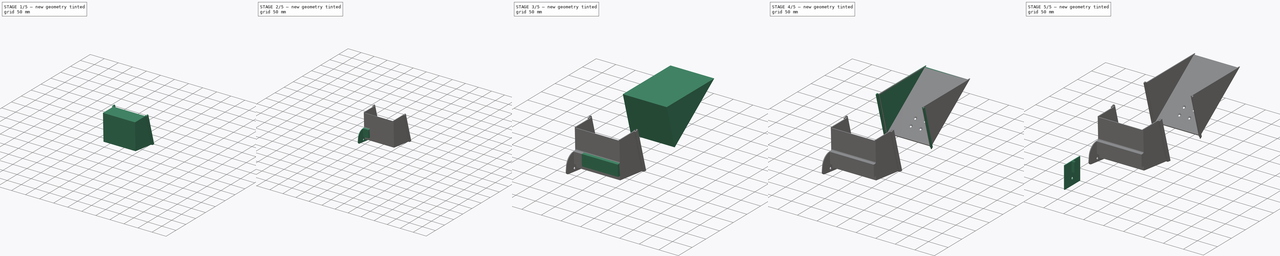
[diagram: build sequence overview — one tinted view per stage of 5, left to right]
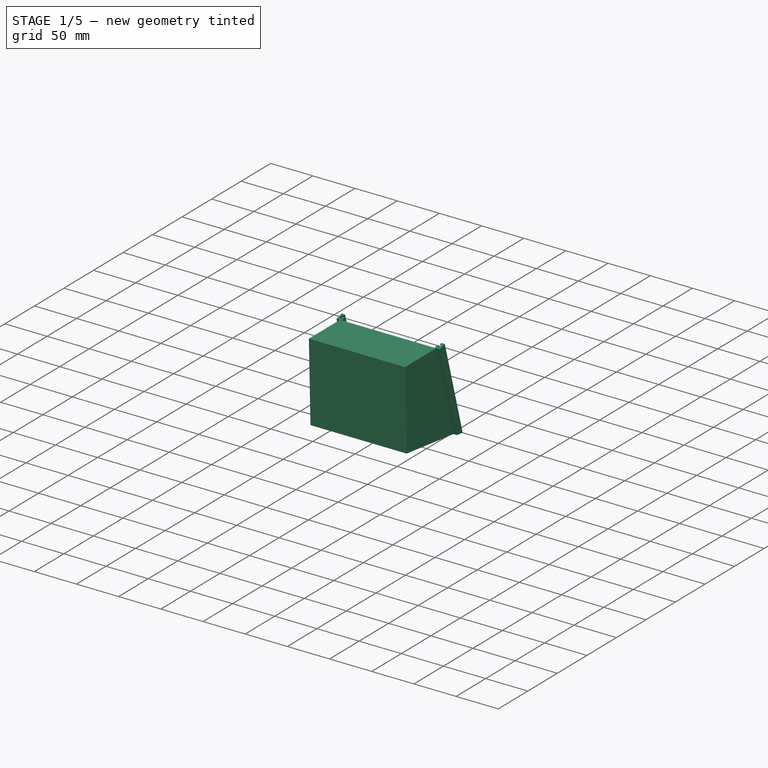
[diagram: stage 1 of 5 — iso view after this stage's code; geometry added in this stage tinted green]
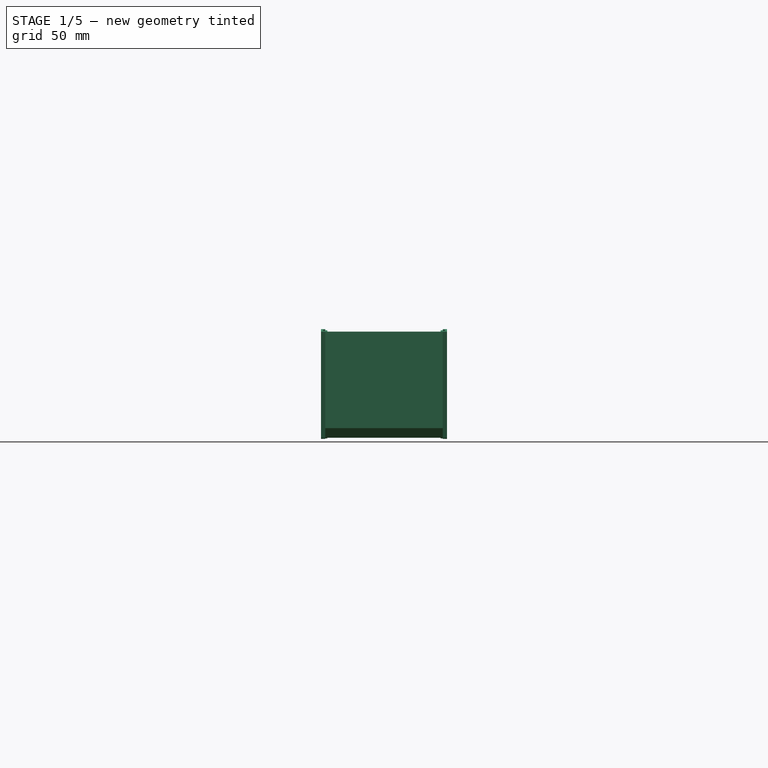
[diagram: stage 1 of 5 — front view after this stage's code; geometry added in this stage tinted green]
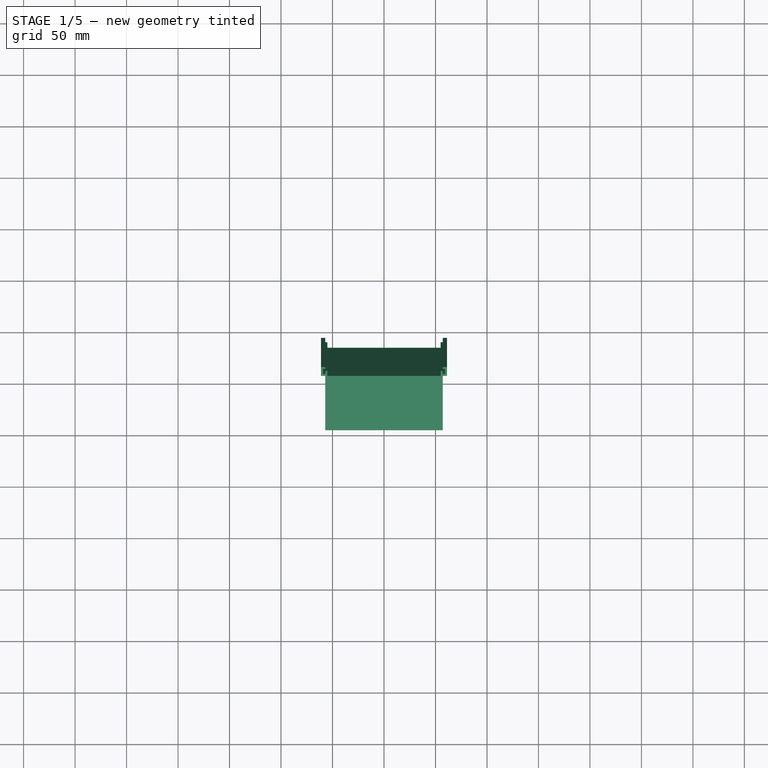
[diagram: stage 1 of 5 — top view after this stage's code; geometry added in this stage tinted green]
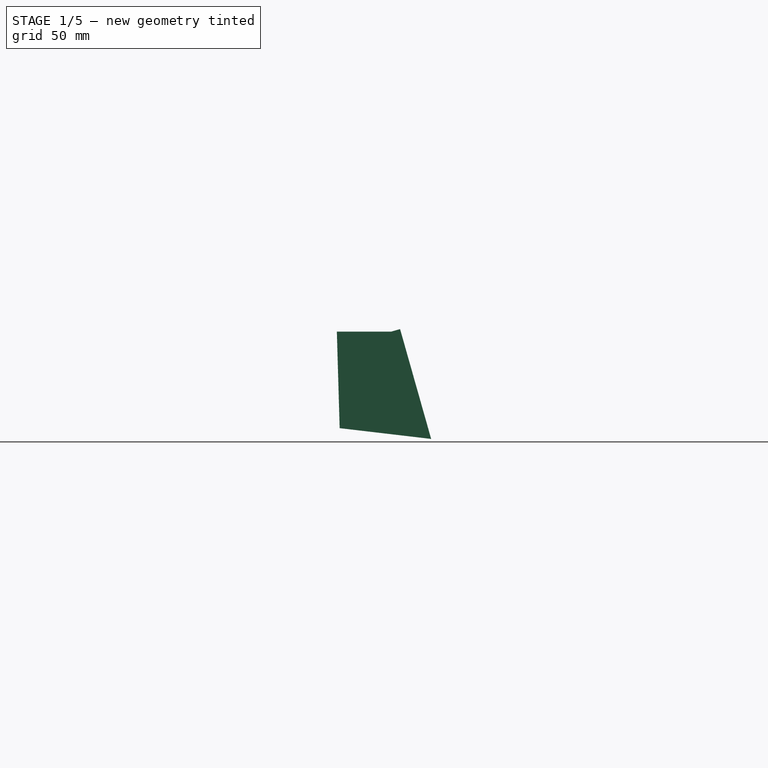
[diagram: stage 1 of 5 — right view after this stage's code; geometry added in this stage tinted green]
FCSTD DOCUMENT  (FreeCAD 0.19R24291 (Git))
Label: bunkerV2
License: All rights reserved
LicenseURL: http://en.wikipedia.org/wiki/All_rights_reserved
objects: Sketcher::SketchObject×14, PartDesign::Pad×13, PartDesign::Pocket×6, PartDesign::Plane×3, PartDesign::Body×3, PartDesign::Mirrored×2, Spreadsheet::Sheet×1, PartDesign::ShapeBinder×1, PartDesign::Hole×1, App::Part×1
note: 63 computed .brp shape members not serialized (recipe doc carries the construction recipe); baked Part::Feature solids carry a one-line shape summary decoded from their .brp

FEATURE [Spreadsheet::Sheet] Spreadsheet  label="D"
  cells = A1=Thickness; B1(thickness)=2; A2=Width; B2(width)=110; A3=Gap; B3(gap)=0.1
FEATURE [Sketcher::SketchObject] Sketch
  FullyConstrained = false
  MapMode = 5
  Placement = pos=(0,0,0) rot=(0.57735,0.57735,0.57735;2.0944rad)
  Support = -> [YZ_Plane]
  expr: Constraints[27] = <<D>>.thickness
  sketch-geometry (12):
    g0: LineSegment StartX=6.18549 StartY=-0.632547 StartZ=0 EndX=3.4533 EndY=93.114 EndZ=0
    g1: LineSegment StartX=3.4533 StartY=93.114 StartZ=0 EndX=56.2043 EndY=93.114 EndZ=0
    g2: LineSegment StartX=56.2043 StartY=93.114 StartZ=0 EndX=85.3612 EndY=-9.93593 EndZ=0
    g3: LineSegment StartX=85.3612 StartY=-9.93593 StartZ=0 EndX=6.18549 EndY=-0.632547 EndZ=0
    g4: LineSegment StartX=5.51244 StartY=91.114 StartZ=0 EndX=54.6917 EndY=91.114 EndZ=0
    g5: LineSegment StartX=54.6917 StartY=91.114 StartZ=0 EndX=82.6219 EndY=-7.60029 EndZ=0
    g6: LineSegment StartX=82.6219 StartY=-7.60029 StartZ=0 EndX=8.13433 EndY=1.15222 EndZ=0
    g7: LineSegment StartX=8.13433 StartY=1.15222 StartZ=0 EndX=5.51244 EndY=91.114 EndZ=0
    g8: LineSegment StartX=11.9382 StartY=91.114 StartZ=0 EndX=11.9382 EndY=93.114 EndZ=0
    g9: LineSegment StartX=57.7151 StartY=80.4284 StartZ=0 EndX=59.6395 EndY=80.9729 EndZ=0
    g10: LineSegment StartX=6.4371 StartY=59.387 StartZ=0 EndX=4.43795 EndY=59.3288 EndZ=0
    g11: LineSegment StartX=27.1691 StartY=-3.09818 StartZ=0 EndX=27.4025 EndY=-1.11185 EndZ=0
  constraints (32):
    c: Coincident(g0,g1)
    c: Coincident(g1,g2)
    c: Coincident(g2,g3)
    c: Coincident(g3,g0)
    c: Coincident(g4,g5)
    c: Coincident(g5,g6)
    c: Coincident(g6,g7)
    c: Coincident(g7,g4)
    c: PointOnObject(g11,g6)
    c: PointOnObject(g11,g3)
    c: PointOnObject(g10,g7)
    c: PointOnObject(g10,g0)
    c: PointOnObject(g9,g5)
    c: PointOnObject(g9,g2)
    c: PointOnObject(g8,g1)
    c: PointOnObject(g8,g4)
    c: Perpendicular(g6,g11)
    c: Perpendicular(g3,g11)
    c: Perpendicular(g0,g10)
    c: Perpendicular(g7,g10)
    c: Perpendicular(g1,g8)
    c: Perpendicular(g4,g8)
    c: Perpendicular(g5,g9)
    c: Perpendicular(g2,g9)
    c: Equal(g8,g9)
    c: Equal(g9,g10)
    c: Equal(g10,g11)
    c: Distance(g11) = 2
    c: Angle(g5,g6) = 1.1781
    c: Distance(g6) = 75
    c: Distance(g7) = 90
    c: Horizontal(g4)
FEATURE [PartDesign::Pad] Pad
  Direction = (1,1,1)
  Length = 55
  Length2 = 55
  Placement = pos=(0,0,0) rot=(0.57735,0.57735,0.57735;2.0944rad)
  Profile = -> Sketch
  Type = 4
  expr: Length2 = <<D>>.width / 2
  expr: Length = <<D>>.width / 2
FEATURE [Sketcher::SketchObject] Sketch001
  ExternalGeometry = -> [Pad]
  FullyConstrained = true
  MapMode = 5
  Placement = pos=(55,-1.21e-14,1.21e-14) rot=(0.57735,0.57735,0.57735;2.0944rad)
  Support = -> [Pad]
  sketch-geometry (4):
    g0: LineSegment StartX=3.4533 StartY=93.114 StartZ=0 EndX=56.2043 EndY=93.114 EndZ=0
    g1: LineSegment StartX=56.2043 StartY=93.114 StartZ=0 EndX=85.3612 EndY=-9.93593 EndZ=0
    g2: LineSegment StartX=85.3612 StartY=-9.93593 StartZ=0 EndX=6.18549 EndY=-0.632547 EndZ=0
    g3: LineSegment StartX=6.18549 StartY=-0.632547 StartZ=0 EndX=3.4533 EndY=93.114 EndZ=0
  constraints (8):
    c: Coincident(g-4,g0)
    c: Coincident(g0,g-5)
    c: Coincident(g0,g1)
    c: Coincident(g1,g-6)
    c: Coincident(g1,g2)
    c: Coincident(g2,g-6)
    c: Coincident(g2,g3)
    c: Coincident(g3,g0)
FEATURE [PartDesign::Pad] Pad001
  BaseFeature = -> Pad
  Direction = (1,1,1)
  Length = 2
  Length2 = 100
  Placement = pos=(0,0,0) rot=(0.57735,0.57735,0.57735;2.0944rad)
  Profile = -> Sketch001
  Type = 0
  expr: Length = <<D>>.thickness
FEATURE [PartDesign::Plane] DatumPlane
  Length = 149.783
  MapMode = 7
  Placement = pos=(57,56.2043,93.114) rot=(1,0,0;0.275732rad)
  ResizeMode = 0
  Support = -> [Pad001]
  Width = 180.53
FEATURE [Sketcher::SketchObject] Sketch002
  ExternalGeometry = -> [Pad001]
  FullyConstrained = true
  MapMode = 5
  Placement = pos=(57,56.2043,93.114) rot=(1,0,0;0.275732rad)
  Support = -> [DatumPlane]
  expr: Constraints[28] = <<D>>.gap
  expr: Constraints[27] = <<D>>.thickness
  expr: Constraints[26] = <<D>>.thickness
  expr: Constraints[24] = <<D>>.thickness + 2 * <<D>>.gap
  expr: Constraints[23] = <<D>>.thickness
  sketch-geometry (11):
    g0: LineSegment StartX=0 StartY=7.1e-15 StartZ=0 EndX=4.2 EndY=0 EndZ=0
    g1: LineSegment StartX=4.2 StartY=0 StartZ=0 EndX=4.2 EndY=9 EndZ=0
    g2: LineSegment StartX=4.2 StartY=9 StartZ=0 EndX=0.1 EndY=9 EndZ=0
    g3: LineSegment StartX=0.1 StartY=9 StartZ=0 EndX=0.1 EndY=7 EndZ=0
    g4: LineSegment StartX=0.1 StartY=7 StartZ=0 EndX=2.2 EndY=7 EndZ=0
    g5: LineSegment StartX=2.2 StartY=7 StartZ=0 EndX=2.2 EndY=2 EndZ=0
    g6: LineSegment StartX=2.2 StartY=2 StartZ=0 EndX=0 EndY=2 EndZ=0
    g7: LineSegment StartX=0 StartY=2 StartZ=0 EndX=0 EndY=5 EndZ=0
    g8: LineSegment StartX=0 StartY=5 StartZ=0 EndX=-2 EndY=5 EndZ=0
    g9: LineSegment StartX=-2 StartY=5 StartZ=0 EndX=-2 EndY=0 EndZ=0
    g10: LineSegment StartX=-2 StartY=0 StartZ=0 EndX=0 EndY=7.1e-15 EndZ=0
  constraints (31):
    c: Coincident(g-1,g0)
    c: PointOnObject(g0,g-1)
    c: Coincident(g0,g1)
    c: Vertical(g1)
    c: Coincident(g1,g2)
    c: Horizontal(g2)
    c: Coincident(g2,g3)
    c: Vertical(g3)
    c: Coincident(g3,g4)
    c: Horizontal(g4)
    c: Coincident(g4,g5)
    c: Vertical(g5)
    c: Coincident(g5,g6)
    c: PointOnObject(g6,g-2)
    c: Horizontal(g6)
    c: Coincident(g6,g7)
    c: PointOnObject(g7,g-2)
    c: Coincident(g7,g8)
    c: Horizontal(g8)
    c: Coincident(g8,g9)
    c: Coincident(g9,g-3)
    c: Vertical(g9)
    c: Equal(g8,g3)
    c: DistanceX(g5,g0) = 2
    c: Distance(g6) = 2.2
    c: Distance(g7) = 3
    c: DistanceY(g0,g5) = 2
    c: DistanceY(g7,g3) = 2
    c: DistanceX(g7,g3) = 0.1
    c: Coincident(g10,g9)
    c: Coincident(g10,g0)
FEATURE [PartDesign::Pad] Pad002
  BaseFeature = -> Pad001
  Direction = (1,1,1)
  Length = 10
  Length2 = 100
  Placement = pos=(0,0,0) rot=(0.57735,0.57735,0.57735;2.0944rad)
  Profile = -> Sketch002
  Type = 3
  UpToFace = -> Pad001 [Face7]
FEATURE [PartDesign::Mirrored] Mirrored
  BaseFeature = -> Pad002
  MirrorPlane = -> YZ_Plane
  Originals = -> [Pad001,Pad002]
  Placement = pos=(0,0,0) rot=(0.57735,0.57735,0.57735;2.0944rad)
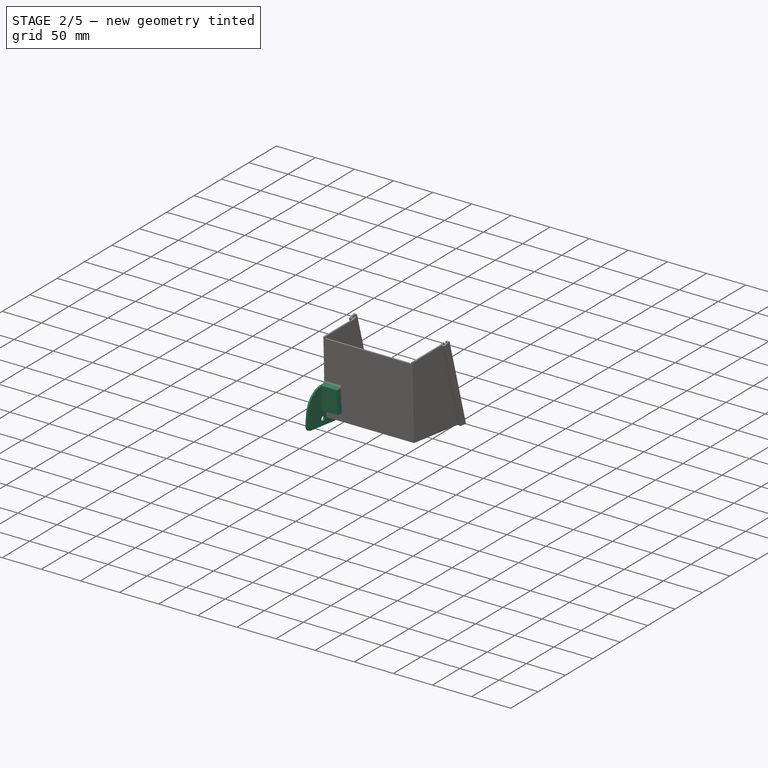
[diagram: stage 2 of 5 — iso view after this stage's code; geometry added in this stage tinted green]
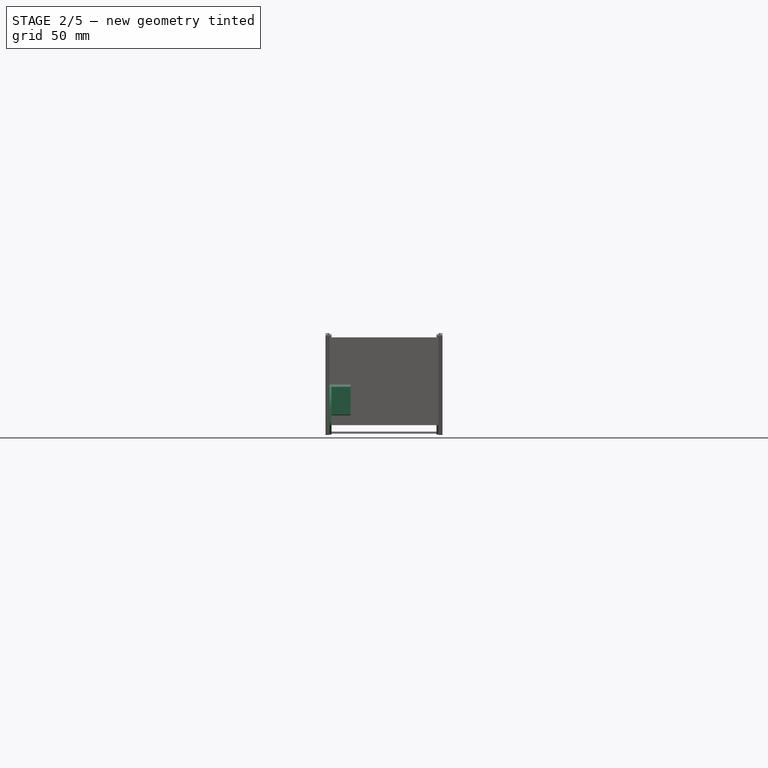
[diagram: stage 2 of 5 — front view after this stage's code; geometry added in this stage tinted green]
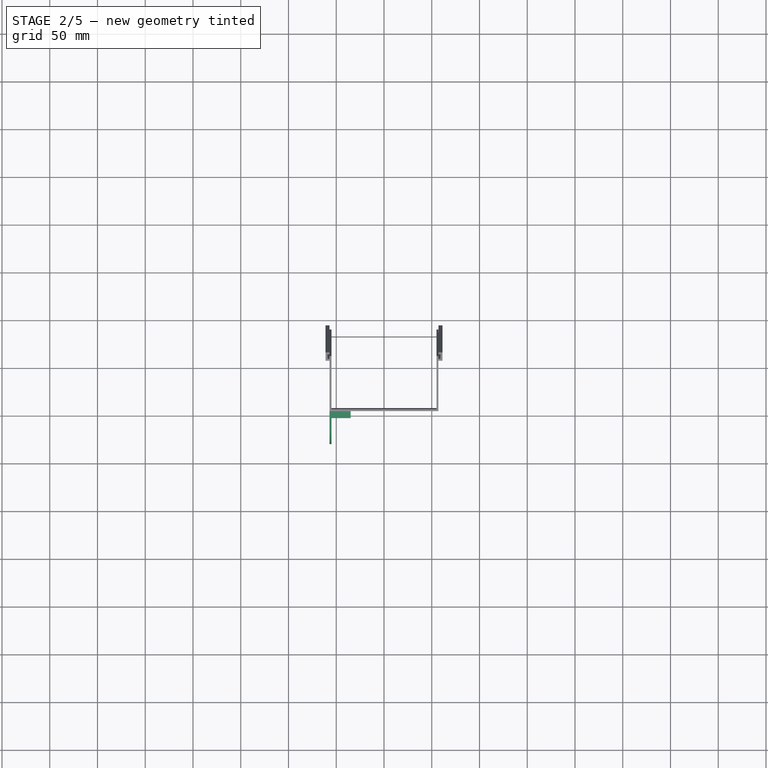
[diagram: stage 2 of 5 — top view after this stage's code; geometry added in this stage tinted green]
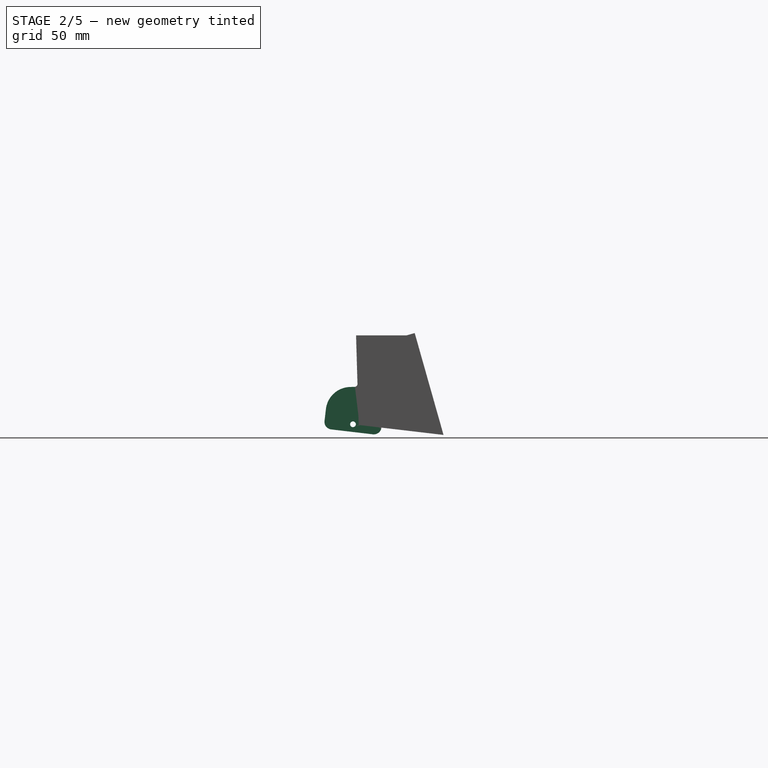
[diagram: stage 2 of 5 — right view after this stage's code; geometry added in this stage tinted green]
FEATURE [Sketcher::SketchObject] Sketch003
  FullyConstrained = false
  MapMode = 5
  Placement = pos=(0,0,0) rot=(0.57735,0.57735,0.57735;2.0944rad)
  Support = -> [YZ_Plane001]
  expr: Constraints[52] = Sketch.Constraints[30]
  expr: Constraints[50] = Sketch.Constraints[28]
  expr: Constraints[49] = Sketch.Constraints[27]
  expr: Constraints[51] = Sketch.Constraints[29]
  expr: Constraints[21] = <<D>>.thickness
  sketch-geometry (21):
    g0: LineSegment StartX=175.7 StartY=103.555 StartZ=0 EndX=205.128 EndY=-0.452097 EndZ=0
    g1: LineSegment StartX=205.128 StartY=-0.452097 StartZ=0 EndX=349.35 EndY=103.555 EndZ=0
    g2: LineSegment StartX=349.35 StartY=103.555 StartZ=0 EndX=175.7 EndY=103.555 EndZ=0
    g3: LineSegment StartX=178.345 StartY=101.555 StartZ=0 EndX=206.275 EndY=2.84078 EndZ=0
    g4: LineSegment StartX=206.275 StartY=2.84078 StartZ=0 EndX=343.157 EndY=101.555 EndZ=0
    g5: LineSegment StartX=343.157 StartY=101.555 StartZ=0 EndX=178.345 EndY=101.555 EndZ=0
    g6: LineSegment StartX=193.58 StartY=101.555 StartZ=0 EndX=193.58 EndY=103.555 EndZ=0
    g7: LineSegment StartX=189.181 StartY=63.2551 StartZ=0 EndX=187.257 EndY=62.7106 EndZ=0
    g8: LineSegment StartX=208.094 StartY=4.15257 StartZ=0 EndX=209.264 EndY=2.53039 EndZ=0
    g9: LineSegment StartX=6.18547 StartY=-0.632548 StartZ=0 EndX=3.4533 EndY=93.114 EndZ=0
    g10: LineSegment StartX=3.4533 StartY=93.114 StartZ=0 EndX=56.2043 EndY=93.114 EndZ=0
    g11: LineSegment StartX=56.2043 StartY=93.114 StartZ=0 EndX=85.3612 EndY=-9.93593 EndZ=0
    g12: LineSegment StartX=85.3612 StartY=-9.93593 StartZ=0 EndX=6.18547 EndY=-0.632548 EndZ=0
    g13: LineSegment StartX=5.51244 StartY=91.114 StartZ=0 EndX=54.6917 EndY=91.114 EndZ=0
    g14: LineSegment StartX=54.6917 StartY=91.114 StartZ=0 EndX=82.6218 EndY=-7.60029 EndZ=0
    g15: LineSegment StartX=82.6218 StartY=-7.60029 StartZ=0 EndX=8.1343 EndY=1.15222 EndZ=0
    g16: LineSegment StartX=8.1343 StartY=1.15222 StartZ=0 EndX=5.51244 EndY=91.114 EndZ=0
    g17: LineSegment StartX=11.9382 StartY=91.114 StartZ=0 EndX=11.9382 EndY=93.114 EndZ=0
    g18: LineSegment StartX=57.7164 StartY=80.4237 StartZ=0 EndX=59.6408 EndY=80.9682 EndZ=0
    g19: LineSegment StartX=6.43771 StartY=59.366 StartZ=0 EndX=4.43856 EndY=59.3078 EndZ=0
    g20: LineSegment StartX=31.8291 StartY=-3.64575 StartZ=0 EndX=32.0625 EndY=-1.65942 EndZ=0
  constraints (60):
    c: Coincident(g0,g1)
    c: Coincident(g1,g2)
    c: Coincident(g2,g0)
    c: Horizontal(g2)
    c: Coincident(g3,g4)
    c: Coincident(g4,g5)
    c: Coincident(g5,g3)
    c: Horizontal(g5)
    c: PointOnObject(g6,g5)
    c: PointOnObject(g6,g2)
    c: Vertical(g6)
    c: PointOnObject(g7,g3)
    c: PointOnObject(g7,g0)
    c: PointOnObject(g8,g4)
    c: PointOnObject(g8,g1)
    c: Perpendicular(g1,g8)
    c: Perpendicular(g4,g8)
    c: Perpendicular(g3,g7)
    c: Perpendicular(g0,g7)
    c: Equal(g8,g7)
    c: Equal(g7,g6)
    c: Distance(g8) = 2
    c: Coincident(g9,g10)
    c: Coincident(g10,g11)
    c: Coincident(g11,g12)
    c: Coincident(g12,g9)
    c: Coincident(g13,g14)
    c: Coincident(g14,g15)
    c: Coincident(g15,g16)
    c: Coincident(g16,g13)
    c: PointOnObject(g20,g15)
    c: PointOnObject(g20,g12)
    c: PointOnObject(g19,g16)
    c: PointOnObject(g19,g9)
    c: PointOnObject(g18,g14)
    c: PointOnObject(g18,g11)
    c: PointOnObject(g17,g10)
    c: PointOnObject(g17,g13)
    c: Perpendicular(g15,g20)
    c: Perpendicular(g12,g20)
    c: Perpendicular(g9,g19)
    c: Perpendicular(g16,g19)
    c: Perpendicular(g10,g17)
    c: Perpendicular(g13,g17)
    c: Perpendicular(g14,g18)
    c: Perpendicular(g11,g18)
    c: Equal(g17,g18)
    c: Equal(g18,g19)
    c: Equal(g19,g20)
    c: Distance(g20) = 2
    c: Angle(g14,g15) = 1.1781
    c: Distance(g15) = 75
    c: Distance(g16) = 90
    c: Horizontal(g13)
    c: DistanceX(g11,g10) = -29.1569
    c: DistanceY(g11,g10) = 103.05
    c: DistanceX(g9) = 3.4533
    c: DistanceY(g9) = 93.114
    c: Parallel(g0,g11)
    c: Equal(g3,g14)
FEATURE [Sketcher::SketchObject] Sketch008
  ExternalGeometry = -> [Mirrored]
  FullyConstrained = true
  MapMode = 5
  Placement = pos=(-57,2.22e-14,-1.1e-15) rot=(-0.57735,-0.57735,0.57735;2.0944rad)
  Support = -> [Mirrored]
  sketch-geometry (7):
    g0: LineSegment StartX=5.89417 StartY=-9.36321 StartZ=0 EndX=5.02021 EndY=-39.3505 EndZ=0
    g1: LineSegment StartX=5.02021 StartY=-39.3505 StartZ=0 EndX=-2.9764 EndY=-39.1174 EndZ=0
    g2: LineSegment StartX=-2.9764 StartY=-39.1174 StartZ=0 EndX=-2.13673 EndY=-10.3069 EndZ=0
    g3: LineSegment StartX=5.89417 StartY=-9.36321 StartZ=0 EndX=-2.13673 EndY=-10.3069 EndZ=0
    g4: ArcOfCircle CenterX=1.93409 CenterY=-42.2618 CenterZ=0 NormalX=0 NormalY=0 NormalZ=1 AngleXU=0 Radius=3 StartAngle=6.25405 EndAngle=7.82484
    g5: LineSegment StartX=-2.9764 StartY=-39.1174 StartZ=0 EndX=2.02151 EndY=-39.2631 EndZ=0
    g6: LineSegment StartX=4.93281 StartY=-42.3492 StartZ=0 EndX=5.02021 EndY=-39.3505 EndZ=0
  constraints (21):
    c: PointOnObject(g0,g-4)
    c: Coincident(g0,g1)
    c: Coincident(g1,g2)
    c: Parallel(g-3,g3)
    c: Distance(g1) = 8
    c: Distance(g0) = 30
    c: Parallel(g0,g2)
    c: Perpendicular(g0,g1)
    c: PointOnObject(g4,g1)
    c: PointOnObject(g4,g-4)
    c: Coincident(g5,g2)
    c: Coincident(g5,g4)
    c: Tangent(g4,g5)
    c: Tangent(g4,g-4)
    c: Radius(g4) = 3
    c: Coincident(g6,g4)
    c: Coincident(g6,g0)
    c: Coincident(g0,g3)
    c: Coincident(g2,g3)
    c: PointOnObject(g0,g-4)
    c: Distance(g0,g-4) = 10
FEATURE [Sketcher::SketchObject] Sketch009
  ExternalGeometry = -> [Mirrored,Sketch008]
  FullyConstrained = false
  MapMode = 5
  Placement = pos=(-57,2.22e-14,-1.1e-15) rot=(-0.57735,-0.57735,0.57735;2.0944rad)
  Support = -> [Mirrored]
  sketch-geometry (10):
    g0: Circle CenterX=-7.03227 CenterY=0.462382 CenterZ=0 NormalX=0 NormalY=0 NormalZ=1 AngleXU=0 Radius=3
    g1: LineSegment StartX=-10.0202 StartY=0.19411 StartZ=0 EndX=-18.5858 EndY=-0.574939 EndZ=0
    g2: LineSegment StartX=-18.5858 StartY=-0.574939 StartZ=0 EndX=-20.4905 EndY=20.6397 EndZ=0
    g3: LineSegment StartX=-18.5858 StartY=-0.574939 StartZ=0 EndX=-20.7856 EndY=23.9265 EndZ=0
    g4: LineSegment StartX=-18.5858 StartY=-0.574939 StartZ=0 EndX=-16.6811 EndY=-21.7896 EndZ=0
    g5: Circle CenterX=-20.6381 CenterY=22.2831 CenterZ=0 NormalX=0 NormalY=0 NormalZ=1 AngleXU=0 Radius=1.65
    g6: Circle CenterX=-16.5335 CenterY=-23.433 CenterZ=0 NormalX=0 NormalY=0 NormalZ=1 AngleXU=0 Radius=1.65
    g7: ArcOfCircle CenterX=-16.5335 CenterY=-23.433 CenterZ=0 NormalX=0 NormalY=0 NormalZ=1 AngleXU=0 Radius=4.26244 StartAngle=3.23114 EndAngle=4.25778
    g8: ArcOfCircle CenterX=-20.6381 CenterY=22.2831 CenterZ=0 NormalX=0 NormalY=0 NormalZ=1 AngleXU=0 Radius=4.26244 StartAngle=1.19385 EndAngle=3.23114
    g9: LineSegment StartX=-20.7789 StartY=-23.8142 StartZ=0 EndX=-24.8834 EndY=21.9019 EndZ=0
  constraints (26):
    c: Radius(g0) = 3
    c: Perpendicular(g0,g1)
    c: PointOnObject(g1,g0)
    c: Coincident(g2,g1)
    c: Coincident(g3,g1)
    c: Coincident(g4,g1)
    c: PointOnObject(g3,g5)
    c: PointOnObject(g2,g5)
    c: PointOnObject(g2,g3)
    c: Perpendicular(g5,g2)
    c: Equal(g2,g4)
    c: Perpendicular(g2,g1)
    c: Parallel(g4,g2)
    c: PointOnObject(g4,g6)
    c: Equal(g6,g5)
    c: Perpendicular(g6,g4)
    c: Distance(g3) = 24.6
    c: Distance(g2) = 21.3
    c: Distance(g1) = 8.6
    c: Coincident(g7,g6)
    c: Coincident(g8,g5)
    c: Coincident(g9,g7)
    c: Coincident(g9,g8)
    c: Equal(g7,g8)
    c: Tangent(g9,g7)
    c: Tangent(g9,g8)
FEATURE [PartDesign::Pad] Pad006
  BaseFeature = -> Mirrored
  Direction = (1,1,1)
  Length = 22
  Length2 = 100
  Placement = pos=(0,0,0) rot=(0.57735,0.57735,0.57735;2.0944rad)
  Profile = -> Sketch008
  Reversed = true
  Type = 0
FEATURE [PartDesign::Body] Body002
  Group = -> [DatumPlane002,CopyPad006,Sketch011,Pad007,Sketch012,Sketch013,Pad008,Sketch016,Pad010,Pad011]
  Origin = -> Origin003
  Tip = -> Pad011
FEATURE [Sketcher::SketchObject] Sketch018
  ExternalGeometry = -> [Pad006]
  FullyConstrained = true
  MapMode = 5
  Placement = pos=(-57,2.22e-14,-1.1e-15) rot=(-0.57735,-0.57735,0.57735;2.0944rad)
  Support = -> [Pad006]
  sketch-geometry (12):
    g0: LineSegment StartX=6.18549 StartY=0.632547 StartZ=0 EndX=0.22649 EndY=-0.067653 EndZ=0
    g1: Circle CenterX=0.22649 CenterY=-0.067653 CenterZ=0 NormalX=0 NormalY=0 NormalZ=1 AngleXU=0 Radius=3
    g2: LineSegment StartX=0.22649 StartY=-0.067653 StartZ=0 EndX=-29.5685 EndY=-3.56865 EndZ=0
    g3: ArcOfCircle CenterX=-21.6232 CenterY=-2.63505 CenterZ=0 NormalX=0 NormalY=0 NormalZ=1 AngleXU=0 Radius=8 StartAngle=1.68776 EndAngle=3.25856
    g4: LineSegment StartX=-22.5568 StartY=5.31028 StartZ=0 EndX=-0.70711 EndY=7.87768 EndZ=0
    g5: LineSegment StartX=0.22649 StartY=-0.067653 StartZ=0 EndX=-0.70711 EndY=7.87768 EndZ=0
    g6: LineSegment StartX=-0.70711 StartY=7.87768 StartZ=0 EndX=21.1426 EndY=10.4451 EndZ=0
    g7: ArcOfCircle CenterX=22.0762 CenterY=2.49975 CenterZ=0 NormalX=0 NormalY=0 NormalZ=1 AngleXU=0 Radius=8 StartAngle=0.116967 EndAngle=1.68776
    g8: GeomPoint X=-0.12361 Y=2.91185 Z=0
    g9: ArcOfCircle CenterX=-2.21736 CenterY=-13.0734 CenterZ=0 NormalX=0 NormalY=0 NormalZ=1 AngleXU=0 Radius=26.0551 StartAngle=3.25856 EndAngle=4.68325
    g10: LineSegment StartX=-29.5685 StartY=-3.56865 StartZ=0 EndX=-28.0944 EndY=-16.114 EndZ=0
    g11: LineSegment StartX=-2.9764 StartY=-39.1174 StartZ=0 EndX=30.0215 EndY=3.43335 EndZ=0
  constraints (34):
    c: Coincident(g0,g-3)
    c: Parallel(g-3,g0)
    c: Distance(g0) = 6
    c: Coincident(g1,g0)
    c: Diameter(g1) = 6
    c: Coincident(g2,g1)
    c: Parallel(g0,g2)
    c: Distance(g2) = 30
    c: PointOnObject(g3,g2)
    c: Coincident(g4,g3)
    c: Tangent(g4,g3)
    c: Parallel(g2,g4)
    c: Coincident(g5,g1)
    c: Coincident(g5,g4)
    c: Perpendicular(g4,g5)
    c: Coincident(g2,g3)
    c: Coincident(g6,g4)
    c: Parallel(g6,g4)
    c: Equal(g6,g4)
    c: PointOnObject(g7,g-3)
    c: Coincident(g7,g6)
    c: PointOnObject(g7,g-3)
    c: Tangent(g7,g6)
    c: PointOnObject(g8,g1)
    c: PointOnObject(g8,g5)
    c: Distance(g8,g4) = 5
    c: Coincident(g10,g3)
    c: Coincident(g10,g9)
    c: Tangent(g9,g10)
    c: Perpendicular(g9,g-4)
    c: Coincident(g9,g-4)
    c: Perpendicular(g2,g10)
    c: Coincident(g11,g9)
    c: Coincident(g11,g7)
FEATURE [PartDesign::Pad] Pad012
  BaseFeature = -> Pad006
  Direction = (1,1,1)
  Length = 2
  Length2 = 100
  Placement = pos=(0,0,0) rot=(0.57735,0.57735,0.57735;2.0944rad)
  Profile = -> Sketch018
  Reversed = true
  Type = 0
FEATURE [PartDesign::Body] Body001
  Group = -> [Sketch003,Pad003,Sketch004,Pad004,DatumPlane001,Sketch005,Pad005,Sketch006,Hole,Mirrored001,Pocket,Pocket001]
  Origin = -> Origin001
  Tip = -> Pocket001
FEATURE [PartDesign::Pocket] Pocket002
  BaseFeature = -> Pad012
  Length = 2
  Length2 = 100
  Placement = pos=(0,0,0) rot=(0.57735,0.57735,0.57735;2.0944rad)
  Profile = -> Pad012 [Face7]
  Type = 0
FEATURE [PartDesign::Pocket] Pocket003
  BaseFeature = -> Pocket002
  Length = 2
  Length2 = 100
  Placement = pos=(0,0,0) rot=(0.57735,0.57735,0.57735;2.0944rad)
  Profile = -> Pocket002 [Face28]
  Type = 0
FEATURE [PartDesign::Pocket] Pocket004
  BaseFeature = -> Pocket003
  Length = 2
  Length2 = 100
  Placement = pos=(0,0,0) rot=(0.57735,0.57735,0.57735;2.0944rad)
  Profile = -> Pocket003 [Face37]
  Type = 0
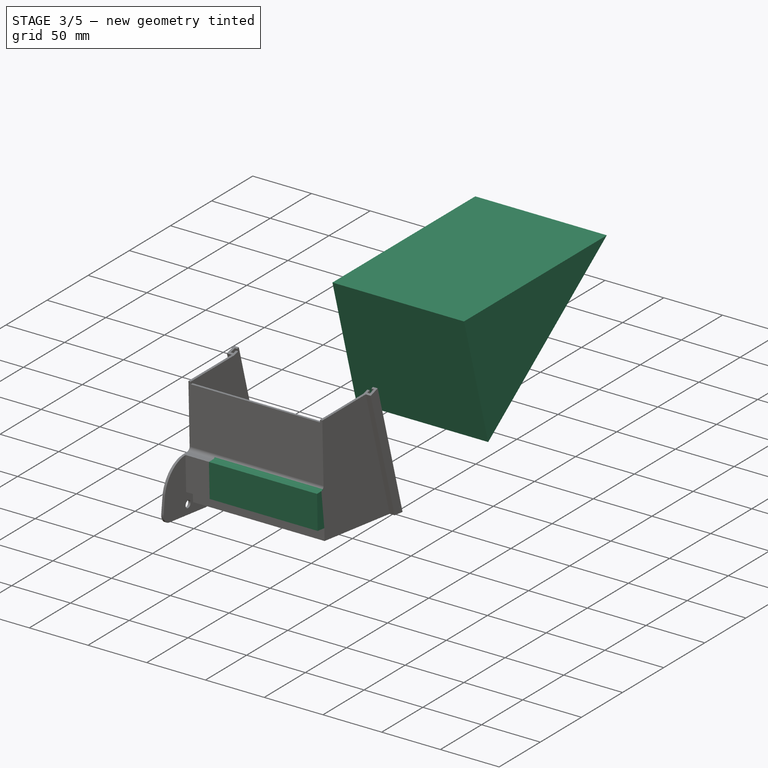
[diagram: stage 3 of 5 — iso view after this stage's code; geometry added in this stage tinted green]
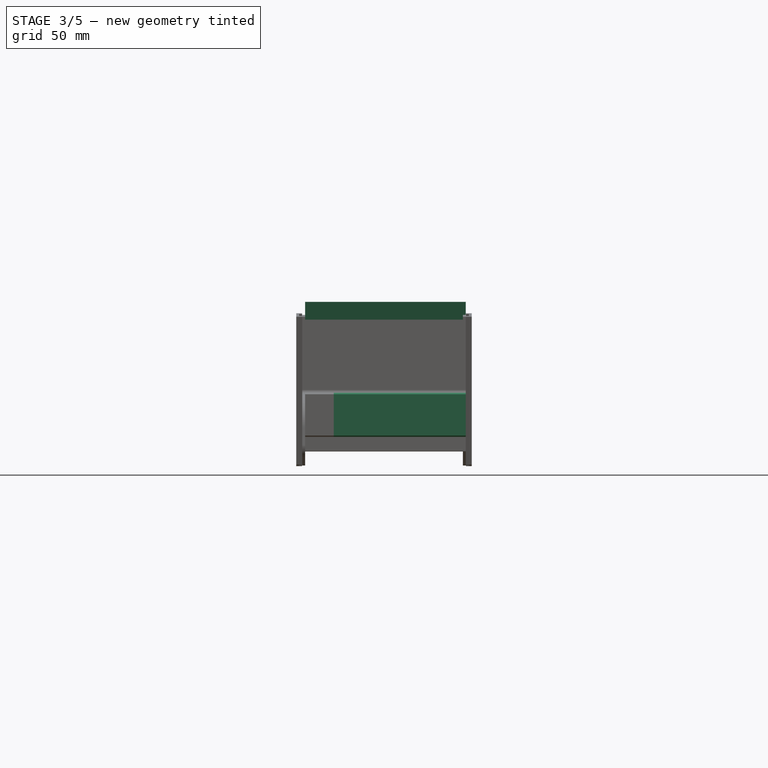
[diagram: stage 3 of 5 — front view after this stage's code; geometry added in this stage tinted green]
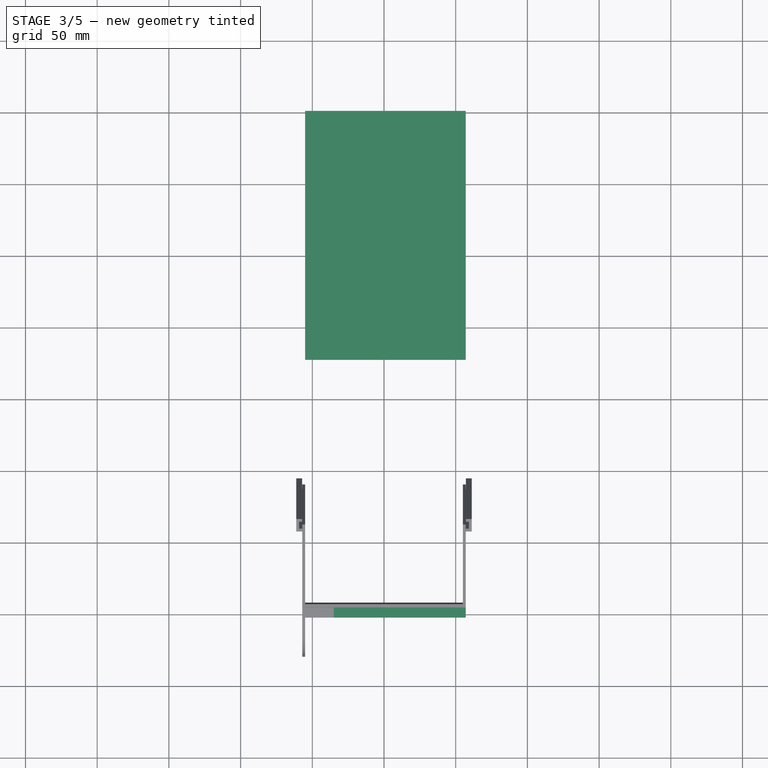
[diagram: stage 3 of 5 — top view after this stage's code; geometry added in this stage tinted green]
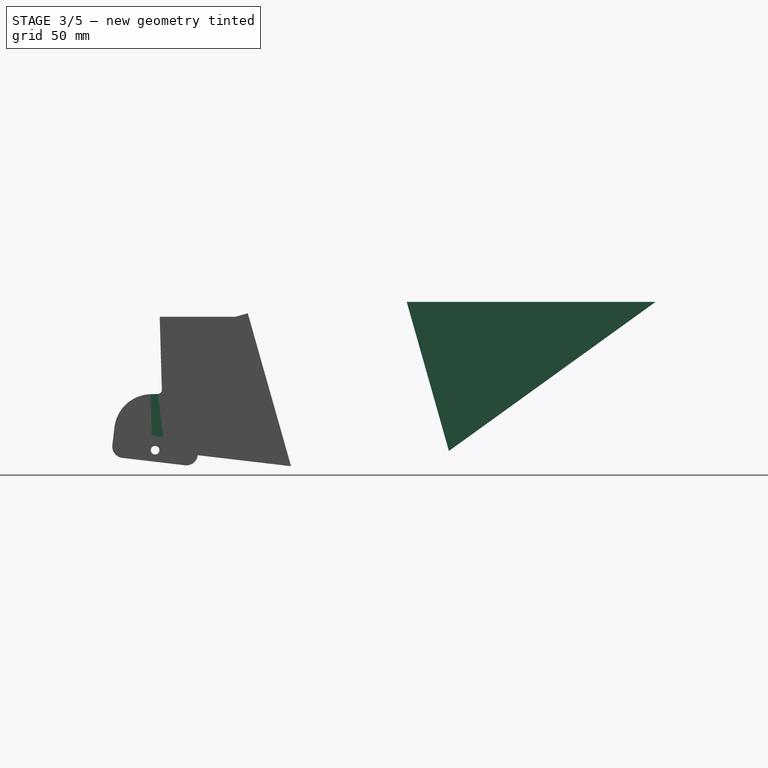
[diagram: stage 3 of 5 — right view after this stage's code; geometry added in this stage tinted green]
FEATURE [PartDesign::Pad] Pad003
  Direction = (1,1,1)
  Length = 55
  Length2 = 55
  Placement = pos=(0,0,0) rot=(0.57735,0.57735,0.57735;2.0944rad)
  Profile = -> Sketch003
  Type = 4
  expr: Length2 = <<D>>.width / 2
  expr: Length = <<D>>.width / 2
FEATURE [Sketcher::SketchObject] Sketch004
  ExternalGeometry = -> [Pad003]
  FullyConstrained = true
  MapMode = 5
  Placement = pos=(55,-1.21e-14,1.21e-14) rot=(0.57735,0.57735,0.57735;2.0944rad)
  Support = -> [Pad003]
  sketch-geometry (3):
    g0: LineSegment StartX=349.35 StartY=103.555 StartZ=0 EndX=205.128 EndY=-0.452097 EndZ=0
    g1: LineSegment StartX=205.128 StartY=-0.452097 StartZ=0 EndX=175.7 EndY=103.555 EndZ=0
    g2: LineSegment StartX=175.7 StartY=103.555 StartZ=0 EndX=349.35 EndY=103.555 EndZ=0
  constraints (6):
    c: Coincident(g-5,g0)
    c: Coincident(g0,g-5)
    c: Coincident(g0,g1)
    c: Coincident(g1,g-4)
    c: Coincident(g1,g2)
    c: Coincident(g2,g0)
FEATURE [PartDesign::Pad] Pad004
  BaseFeature = -> Pad003
  Direction = (1,1,1)
  Length = 2
  Length2 = 100
  Placement = pos=(0,0,0) rot=(0.57735,0.57735,0.57735;2.0944rad)
  Profile = -> Sketch004
  Type = 0
  expr: Length = <<D>>.thickness
FEATURE [PartDesign::Pad] Pad013
  BaseFeature = -> Pocket004
  Direction = (1,1,1)
  Length = 92
  Length2 = 100
  Placement = pos=(0,0,0) rot=(0.57735,0.57735,0.57735;2.0944rad)
  Profile = -> Pocket004 [Face4]
  Type = 0
FEATURE [PartDesign::Pocket] Pocket005
  BaseFeature = -> Pad013
  Length = 5
  Length2 = 100
  Placement = pos=(0,0,0) rot=(0.57735,0.57735,0.57735;2.0944rad)
  Profile = -> Pad013 [Face24]
  Type = 0
FEATURE [PartDesign::Body] Body
  Group = -> [Sketch,Pad,Sketch001,Pad001,DatumPlane,Sketch002,Pad002,Mirrored,Sketch008,Sketch009,Pad006,Sketch018,Pad012,Pocket002,Pocket003,Pocket004,Pad013,Pocket005]
  Origin = -> Origin
  Tip = -> Pocket005
FEATURE [App::Part] Part
  Group = -> [Body,Body001,Spreadsheet,Body002]
  Origin = -> Origin002
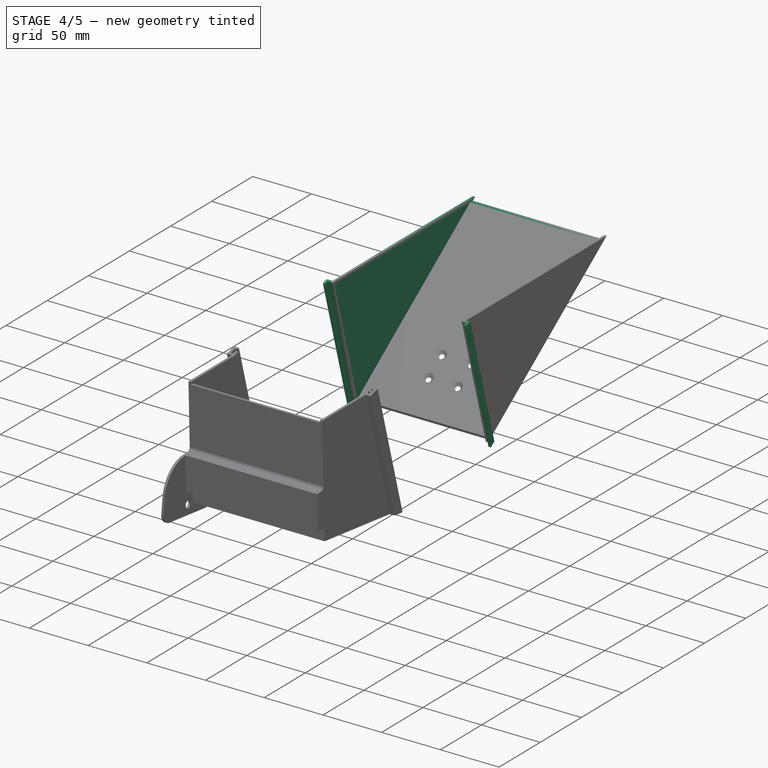
[diagram: stage 4 of 5 — iso view after this stage's code; geometry added in this stage tinted green]
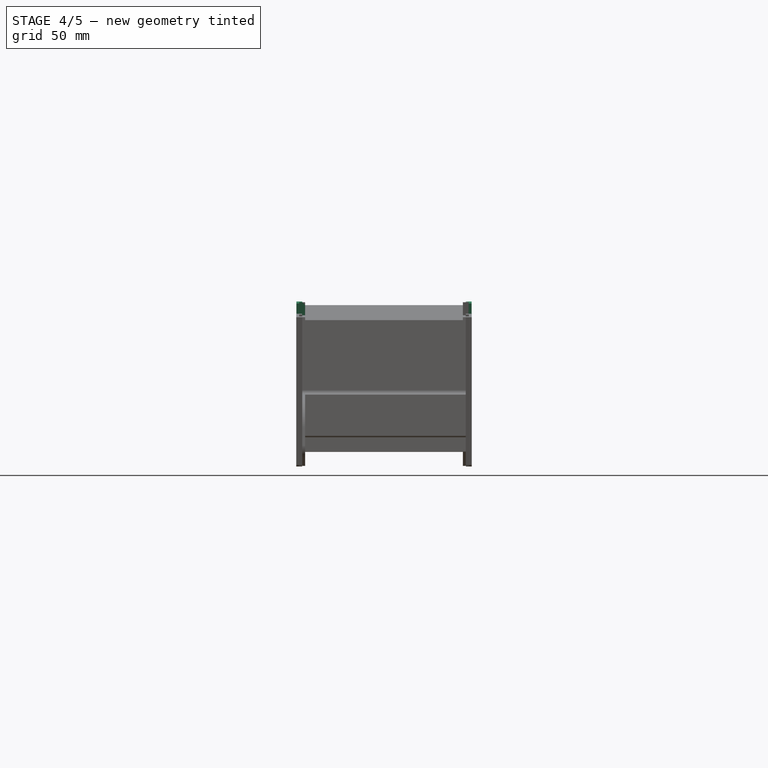
[diagram: stage 4 of 5 — front view after this stage's code; geometry added in this stage tinted green]
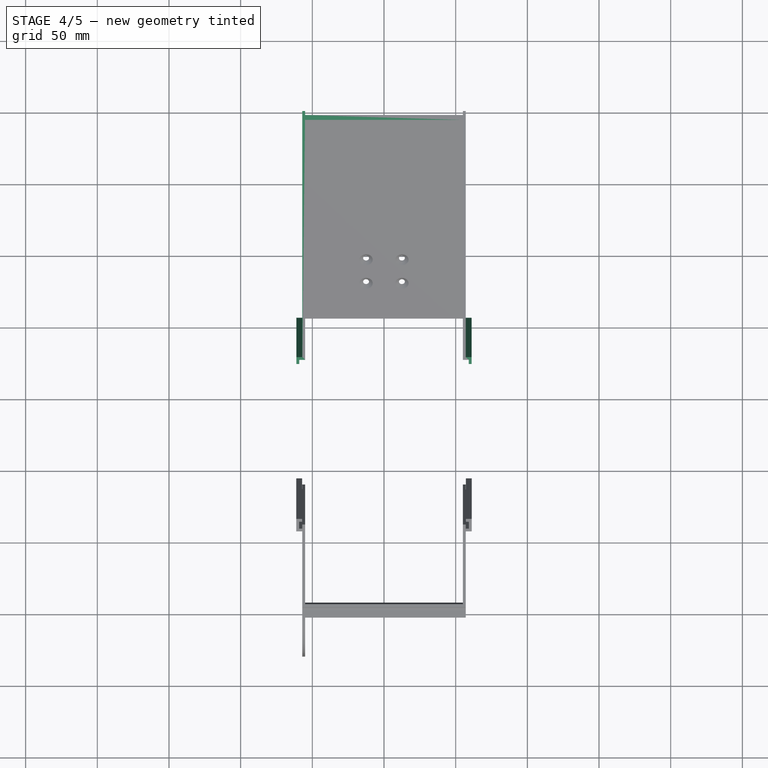
[diagram: stage 4 of 5 — top view after this stage's code; geometry added in this stage tinted green]
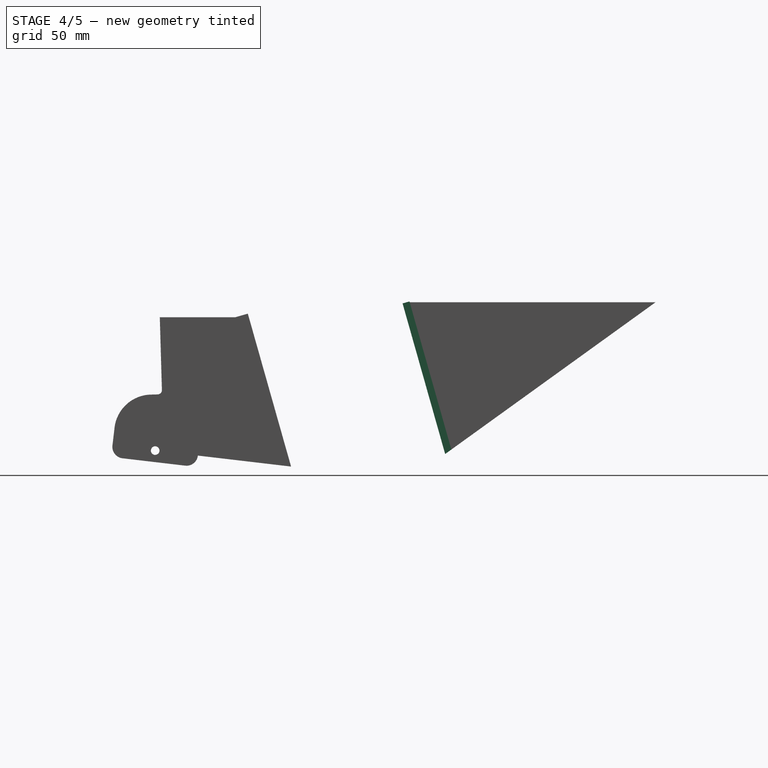
[diagram: stage 4 of 5 — right view after this stage's code; geometry added in this stage tinted green]
FEATURE [PartDesign::Plane] DatumPlane001
  Length = 166.16
  MapMode = 7
  Placement = pos=(57,175.7,103.555) rot=(0,0.990511,0.13743;3.14159rad)
  ResizeMode = 0
  Support = -> [Pad004]
  Width = 439.317
FEATURE [Sketcher::SketchObject] Sketch005
  FullyConstrained = true
  MapMode = 5
  Placement = pos=(57,175.7,103.555) rot=(0,0.990511,0.13743;3.14159rad)
  Support = -> [DatumPlane001]
  expr: Constraints[15] = <<D>>.thickness + <<D>>.gap
  expr: Constraints[14] = <<D>>.thickness
  expr: Constraints[13] = <<D>>.thickness
  sketch-geometry (6):
    g0: LineSegment StartX=0 StartY=0 StartZ=0 EndX=-2.1 EndY=0 EndZ=0
    g1: LineSegment StartX=-2.1 StartY=0 StartZ=0 EndX=-2.1 EndY=-3 EndZ=0
    g2: LineSegment StartX=-2.1 StartY=-3 StartZ=0 EndX=-4.1 EndY=-3 EndZ=0
    g3: LineSegment StartX=-4.1 StartY=-3 StartZ=0 EndX=-4.1 EndY=2 EndZ=0
    g4: LineSegment StartX=-4.1 StartY=2 StartZ=0 EndX=0 EndY=2 EndZ=0
    g5: LineSegment StartX=0 StartY=2 StartZ=0 EndX=0 EndY=0 EndZ=0
  constraints (17):
    c: Coincident(g-1,g0)
    c: PointOnObject(g0,g-1)
    c: Coincident(g0,g1)
    c: Vertical(g1)
    c: Coincident(g1,g2)
    c: Horizontal(g2)
    c: Coincident(g2,g3)
    c: Vertical(g3)
    c: Coincident(g3,g4)
    c: PointOnObject(g4,g-2)
    c: Horizontal(g4)
    c: Coincident(g4,g5)
    c: Coincident(g5,g0)
    c: Distance(g2) = 2
    c: Distance(g5) = 2
    c: Distance(g0) = 2.1
    c: Distance(g1) = 3
FEATURE [PartDesign::Pad] Pad005
  BaseFeature = -> Pad004
  Direction = (1,1,1)
  Length = 10
  Length2 = 100
  Placement = pos=(0,0,0) rot=(0.57735,0.57735,0.57735;2.0944rad)
  Profile = -> Sketch005
  Type = 3
  UpToFace = -> Pad004 [Face7]
FEATURE [Sketcher::SketchObject] Sketch006
  ExternalGeometry = -> [Pad005]
  FullyConstrained = true
  MapMode = 5
  Placement = pos=(5.68e-14,69.2267,-95.9932) rot=(0.293776,0.293776,-0.90961;1.66539rad)
  Support = -> [Pad005]
  expr: Constraints[11] = <<D>>.width / 2
  sketch-geometry (5):
    g0: Circle CenterX=-198.969 CenterY=-12.5 CenterZ=0 NormalX=0 NormalY=0 NormalZ=1 AngleXU=0 Radius=4.12
    g1: Circle CenterX=-198.969 CenterY=12.5 CenterZ=0 NormalX=0 NormalY=0 NormalZ=1 AngleXU=0 Radius=4.12
    g2: Circle CenterX=-218.969 CenterY=12.5 CenterZ=0 NormalX=0 NormalY=0 NormalZ=1 AngleXU=0 Radius=4.12
    g3: Circle CenterX=-218.969 CenterY=-12.5 CenterZ=0 NormalX=0 NormalY=0 NormalZ=1 AngleXU=0 Radius=4.12
    g4: GeomPoint X=-168.969 Y=9.86e-14 Z=0
  constraints (14):
    c: Vertical(g3,g2)
    c: Vertical(g0,g1)
    c: Horizontal(g0,g3)
    c: Horizontal(g1,g2)
    c: Equal(g3,g2)
    c: Equal(g2,g1)
    c: Equal(g1,g0)
    c: Diameter(g1) = 8.24
    c: DistanceX(g0,g-4) = 30
    c: DistanceX(g3,g-4) = 50
    c: PointOnObject(g4,g-4)
    c: Distance(g4,g-4) = 55
    c: DistanceY(g4,g1) = 12.5
    c: DistanceY(g0,g1) = 25
FEATURE [PartDesign::Hole] Hole
  BaseFeature = -> Pad005
  Depth = 25
  DepthType = 0
  Diameter = 3.8
  DrillForDepth = false
  DrillPoint = 1
  DrillPointAngle = 89
  HoleCutCountersinkAngle = 105
  HoleCutCustomValues = false
  HoleCutDepth = 5.4
  HoleCutDiameter = 9.28
  HoleCutType = 2
  ModelActualThread = false
  Placement = pos=(0,0,0) rot=(0.57735,0.57735,0.57735;2.0944rad)
  Profile = -> Sketch006
  Tapered = false
  TaperedAngle = 90
  ThreadAngle = 0
  ThreadClass = 0
  ThreadCutOffInner = 0
  ThreadCutOffOuter = 0
  ThreadDirection = 0
  ThreadFit = 0
  ThreadPitch = 0
  ThreadSize = 0
  ThreadType = 0
  Threaded = false
FEATURE [PartDesign::Mirrored] Mirrored001
  BaseFeature = -> Hole
  MirrorPlane = -> YZ_Plane001
  Originals = -> [Pad004,Pad005]
  Placement = pos=(0,0,0) rot=(0.57735,0.57735,0.57735;2.0944rad)
FEATURE [PartDesign::Pocket] Pocket
  BaseFeature = -> Mirrored001
  Length = 2
  Length2 = 100
  Placement = pos=(0,0,0) rot=(0.57735,0.57735,0.57735;2.0944rad)
  Profile = -> Mirrored001 [Face2]
  Type = 0
FEATURE [PartDesign::Pocket] Pocket001
  BaseFeature = -> Pocket
  Length = 2
  Length2 = 100
  Placement = pos=(0,0,0) rot=(0.57735,0.57735,0.57735;2.0944rad)
  Profile = -> Pocket [Face5]
  Type = 0
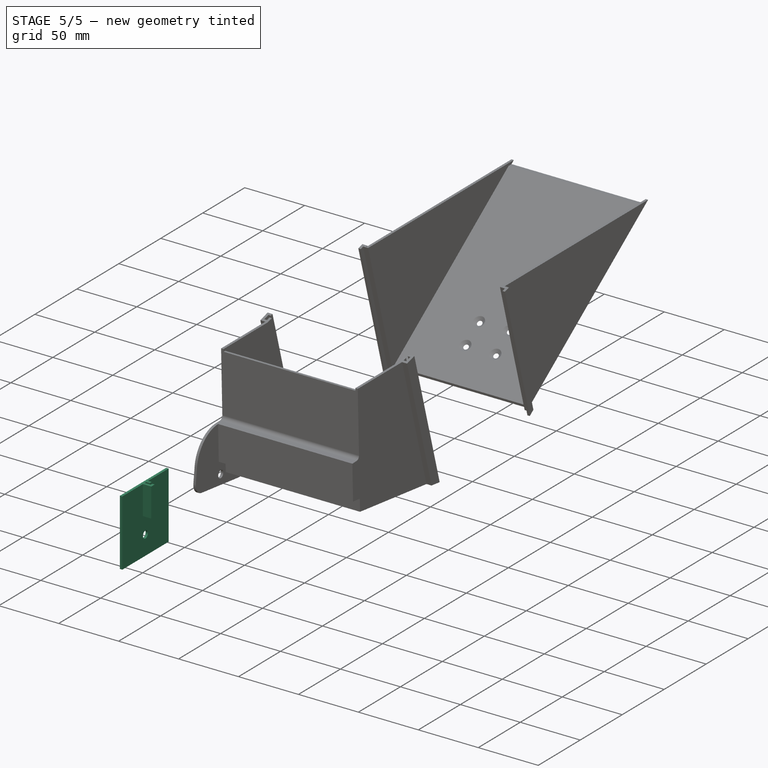
[diagram: stage 5 of 5 — iso view after this stage's code; geometry added in this stage tinted green]
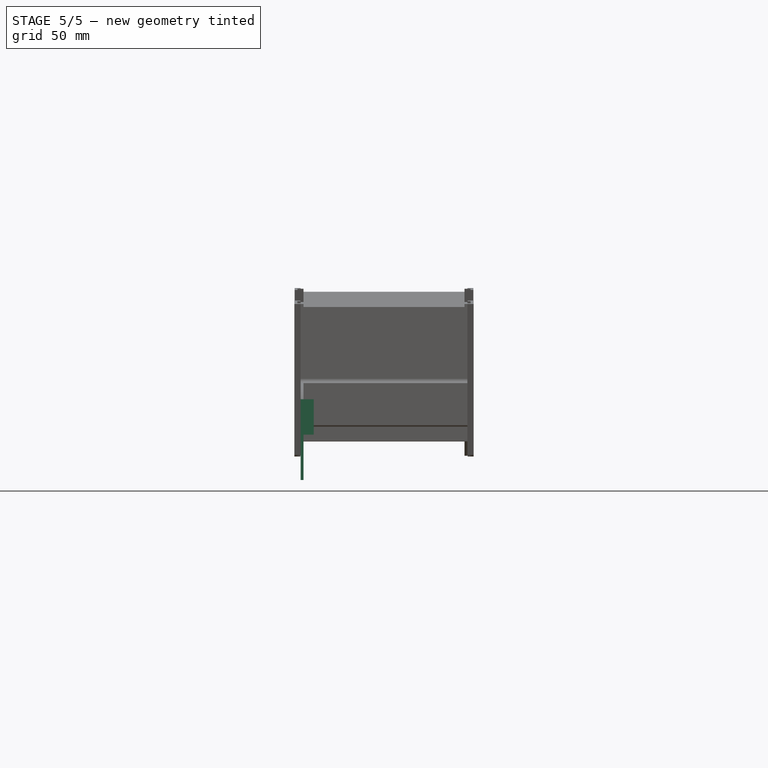
[diagram: stage 5 of 5 — front view after this stage's code; geometry added in this stage tinted green]
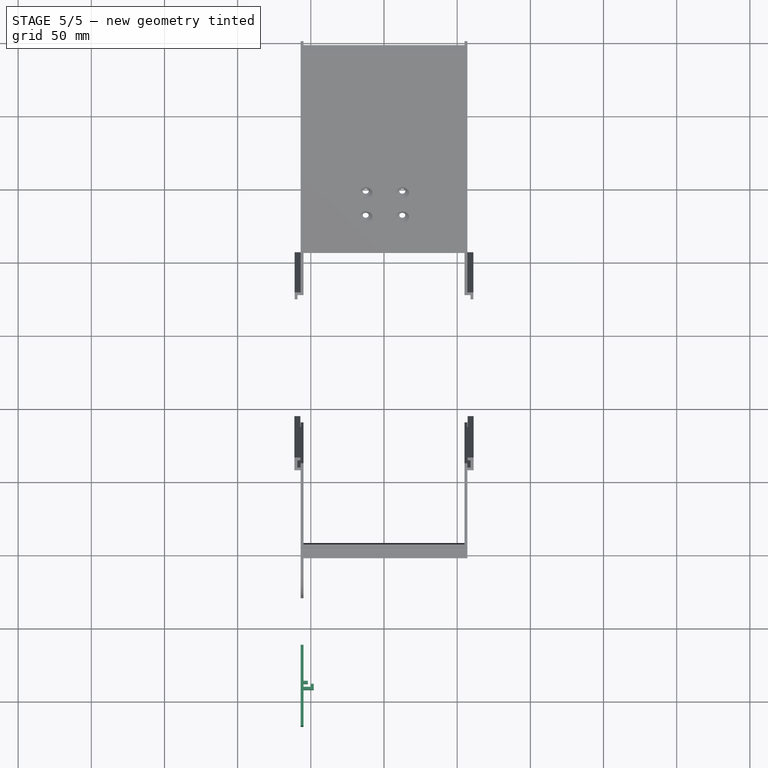
[diagram: stage 5 of 5 — top view after this stage's code; geometry added in this stage tinted green]
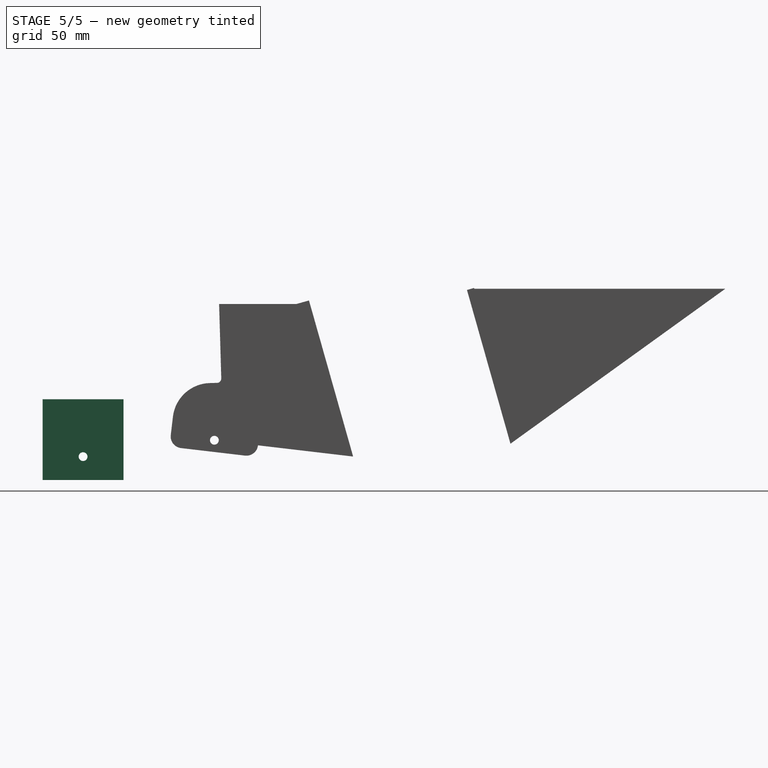
[diagram: stage 5 of 5 — right view after this stage's code; geometry added in this stage tinted green]
FEATURE [PartDesign::ShapeBinder] CopyPad006
  Placement = pos=(0,0,0) rot=(0.57735,0.57735,0.57735;2.0944rad)
  TraceSupport = false
FEATURE [PartDesign::Plane] DatumPlane002
  Length = 197.613
  MapMode = 5
  Placement = pos=(-57,2.96e-14,6e-16) rot=(-0.57735,-0.57735,0.57735;2.0944rad)
  ResizeMode = 0
  Support = -> [CopyPad006]
  Width = 129.176
FEATURE [Sketcher::SketchObject] Sketch011
  FullyConstrained = false
  MapMode = 5
  Placement = pos=(-57,2.96e-14,6e-16) rot=(-0.57735,-0.57735,0.57735;2.0944rad)
  Support = -> [DatumPlane002]
  sketch-geometry (12):
    g0: Circle CenterX=-66.3976 CenterY=-0.4616 CenterZ=0 NormalX=0 NormalY=0 NormalZ=1 AngleXU=0 Radius=1.5
    g1: Circle CenterX=-112.598 CenterY=-0.4616 CenterZ=0 NormalX=0 NormalY=0 NormalZ=1 AngleXU=0 Radius=1.5
    g2: Circle CenterX=-89.4976 CenterY=11.1384 CenterZ=0 NormalX=0 NormalY=0 NormalZ=1 AngleXU=0 Radius=3
    g3: LineSegment StartX=-89.4976 StartY=-0.4616 StartZ=0 EndX=-111.098 EndY=-0.4616 EndZ=0
    g4: LineSegment StartX=-89.4976 StartY=-0.4616 StartZ=0 EndX=-114.098 EndY=-0.4616 EndZ=0
    g5: LineSegment StartX=-89.4976 StartY=-0.4616 StartZ=0 EndX=-67.8976 EndY=-0.4616 EndZ=0
    g6: LineSegment StartX=-89.4976 StartY=-0.4616 StartZ=0 EndX=-89.4976 EndY=8.1384 EndZ=0
    g7: Circle CenterX=-89.4976 CenterY=-0.4616 CenterZ=0 NormalX=0 NormalY=0 NormalZ=1 AngleXU=0 Radius=27.6
    g8: LineSegment StartX=-61.8976 StartY=-28.0616 StartZ=0 EndX=-117.098 EndY=-28.0616 EndZ=0
    g9: LineSegment StartX=-117.098 StartY=-28.0616 StartZ=0 EndX=-117.098 EndY=27.1384 EndZ=0
    g10: LineSegment StartX=-117.098 StartY=27.1384 StartZ=0 EndX=-61.8976 EndY=27.1384 EndZ=0
    g11: LineSegment StartX=-61.8976 StartY=27.1384 StartZ=0 EndX=-61.8976 EndY=-28.0616 EndZ=0
  constraints (34):
    c: Equal(g0,g1)
    c: PointOnObject(g3,g1)
    c: Coincident(g4,g3)
    c: PointOnObject(g4,g1)
    c: PointOnObject(g1,g4)
    c: PointOnObject(g3,g4)
    c: Coincident(g5,g3)
    c: PointOnObject(g5,g0)
    c: Perpendicular(g0,g5)
    c: Coincident(g6,g3)
    c: PointOnObject(g6,g2)
    c: Perpendicular(g3,g6)
    c: Perpendicular(g2,g6)
    c: Perpendicular(g5,g6)
    c: Equal(g5,g3)
    c: Diameter(g2) = 6
    c: Distance(g4) = 24.6
    c: Distance(g3) = 21.6
    c: Distance(g6) = 8.6
    c: Coincident(g7,g3)
    c: Radius(g7) = 27.6
    c: Angle(g-1,g3) = 3.14159
    c: Coincident(g8,g9)
    c: Coincident(g9,g10)
    c: Coincident(g10,g11)
    c: Coincident(g11,g8)
    c: Horizontal(g8)
    c: Horizontal(g10)
    c: Vertical(g9)
    c: Vertical(g11)
    c: Tangent(g8,g7)
    c: Tangent(g7,g11)
    c: Tangent(g9,g7)
    c: Tangent(g10,g7)
FEATURE [PartDesign::Pad] Pad007
  Direction = (1,1,1)
  Length = 2
  Length2 = 100
  Placement = pos=(-57,2.3e-14,1e-15) rot=(0.57735,0.57735,-0.57735;4.18879rad)
  Profile = -> Sketch011
  Reversed = true
  Type = 0
FEATURE [Sketcher::SketchObject] Sketch012
  ExternalGeometry = -> [Pad007]
  FullyConstrained = false
  MapMode = 5
  Placement = pos=(-55,2.22e-14,1e-15) rot=(0.57735,0.57735,0.57735;2.0944rad)
  Support = -> [Pad007]
  expr: Constraints[13] = <<D>>.thickness + <<D>>.gap
  sketch-geometry (16):
    g0: LineSegment StartX=-88.4476 StartY=28.0616 StartZ=0 EndX=-88.4476 EndY=3.8616 EndZ=0
    g1: LineSegment StartX=-86.4476 StartY=28.0616 StartZ=0 EndX=-86.4476 EndY=3.8616 EndZ=0
    g2: LineSegment StartX=-86.4476 StartY=28.0616 StartZ=0 EndX=-88.4476 EndY=28.0616 EndZ=0
    g3: LineSegment StartX=-90.5476 StartY=28.0616 StartZ=0 EndX=-90.5476 EndY=3.8616 EndZ=0
    g4: LineSegment StartX=-92.5476 StartY=28.0616 StartZ=0 EndX=-92.5476 EndY=3.8616 EndZ=0
    g5: LineSegment StartX=-90.5476 StartY=10.591 StartZ=0 EndX=-88.4476 EndY=10.591 EndZ=0
    g6: LineSegment StartX=-92.5476 StartY=10.0776 StartZ=0 EndX=-90.5476 EndY=10.0776 EndZ=0
    g7: LineSegment StartX=-92.5476 StartY=3.8616 StartZ=0 EndX=-89.4976 EndY=3.8616 EndZ=0
    g8: LineSegment StartX=-89.4976 StartY=3.8616 StartZ=0 EndX=-86.4476 EndY=3.8616 EndZ=0
    g9: LineSegment StartX=-89.4976 StartY=12.1843 StartZ=0 EndX=-89.4976 EndY=3.8616 EndZ=0
    g10: LineSegment StartX=-89.4976 StartY=3.8616 StartZ=0 EndX=-89.4976 EndY=-11.1384 EndZ=0
    g11: LineSegment StartX=-92.5476 StartY=28.0616 StartZ=0 EndX=-90.5476 EndY=28.0616 EndZ=0
    g12: LineSegment StartX=-88.4476 StartY=28.0616 StartZ=0 EndX=-86.4476 EndY=28.0616 EndZ=0
    g13: GeomPoint X=-89.4976 Y=-8.1384 Z=0
    g14: LineSegment StartX=-92.5476 StartY=3.8616 StartZ=0 EndX=-90.5476 EndY=3.8616 EndZ=0
    g15: LineSegment StartX=-88.4476 StartY=3.8616 StartZ=0 EndX=-86.4476 EndY=3.8616 EndZ=0
  constraints (44):
    c: Parallel(g1,g0)
    c: Coincident(g2,g1)
    c: PointOnObject(g2,g0)
    c: Perpendicular(g0,g2)
    c: Distance(g2) = 2
    c: Parallel(g4,g3)
    c: Parallel(g4,g0)
    c: PointOnObject(g5,g3)
    c: PointOnObject(g5,g0)
    c: PointOnObject(g6,g3)
    c: PointOnObject(g6,g4)
    c: Perpendicular(g4,g6)
    c: Equal(g6,g2)
    c: Distance(g5) = 2.1
    c: Vertical(g4)
    c: Perpendicular(g0,g5)
    c: Coincident(g7,g8)
    c: Coincident(g10,g9)
    c: Coincident(g7,g9)
    c: Perpendicular(g9,g7)
    c: Perpendicular(g8,g10)
    c: Perpendicular(g9,g8)
    c: Coincident(g7,g4)
    c: Coincident(g1,g8)
    c: PointOnObject(g0,g8)
    c: PointOnObject(g3,g7)
    c: Equal(g7,g8)
    c: Coincident(g4,g11)
    c: Coincident(g11,g3)
    c: Coincident(g0,g12)
    c: Coincident(g12,g1)
    c: PointOnObject(g4,g-5)
    c: PointOnObject(g3,g-5)
    c: PointOnObject(g0,g-5)
    c: PointOnObject(g1,g-5)
    c: Coincident(g10,g-6)
    c: Vertical(g9)
    c: PointOnObject(g13,g10)
    c: PointOnObject(g13,g-6)
    c: Distance(g13,g7) = 12
    c: Coincident(g15,g0)
    c: Coincident(g15,g1)
    c: Coincident(g14,g3)
    c: Coincident(g14,g4)
FEATURE [PartDesign::Pad] Pad008
  BaseFeature = -> Pad007
  Direction = (1,1,1)
  Length = 3
  Length2 = 100
  Placement = pos=(-57,2.3e-14,1e-15) rot=(0.57735,0.57735,-0.57735;4.18879rad)
  Profile = -> Sketch012
  Type = 0
FEATURE [Sketcher::SketchObject] Sketch016
  ExternalGeometry = -> [Pad008]
  FullyConstrained = true
  MapMode = 5
  Placement = pos=(-55,2.22e-14,1e-15) rot=(0.57735,0.57735,0.57735;2.0944rad)
  Support = -> [Pad008]
  expr: Constraints[9] = <<D>>.thickness
  sketch-geometry (4):
    g0: LineSegment StartX=-110.098 StartY=3.8616 StartZ=0 EndX=-112.098 EndY=3.8616 EndZ=0
    g1: LineSegment StartX=-112.098 StartY=3.8616 StartZ=0 EndX=-112.098 EndY=28.0616 EndZ=0
    g2: LineSegment StartX=-112.098 StartY=28.0616 StartZ=0 EndX=-110.098 EndY=28.0616 EndZ=0
    g3: LineSegment StartX=-110.098 StartY=28.0616 StartZ=0 EndX=-110.098 EndY=3.8616 EndZ=0
  constraints (12):
    c: Coincident(g0,g1)
    c: Coincident(g1,g2)
    c: Coincident(g2,g3)
    c: Coincident(g3,g0)
    c: Horizontal(g0)
    c: Horizontal(g2)
    c: Vertical(g1)
    c: Vertical(g3)
    c: DistanceX(g-4,g1) = 5
    c: DistanceX(g0,g0) = 2
    c: Horizontal(g1,g-4)
    c: Horizontal(g0,g-5)
FEATURE [PartDesign::Pad] Pad010
  BaseFeature = -> Pad008
  Direction = (1,1,1)
  Length = 4
  Length2 = 100
  Placement = pos=(-57,2.3e-14,1e-15) rot=(0.57735,0.57735,-0.57735;4.18879rad)
  Profile = -> Pad008 [Face17]
  Type = 0
  expr: Length = 2 * <<D>>.thickness
FEATURE [Sketcher::SketchObject] Sketch013
  ExternalGeometry = -> [Pad010]
  FullyConstrained = true
  MapMode = 5
  Placement = pos=(-57,-90.5476,-1.89e-14) rot=(-0.57735,0.57735,0.57735;2.0944rad)
  Support = -> [Pad010]
  sketch-geometry (4):
    g0: LineSegment StartX=-28.0616 StartY=-9 StartZ=0 EndX=-3.8616 EndY=-9 EndZ=0
    g1: LineSegment StartX=-3.8616 StartY=-9 StartZ=0 EndX=-3.8616 EndY=-7 EndZ=0
    g2: LineSegment StartX=-3.8616 StartY=-7 StartZ=0 EndX=-28.0616 EndY=-7 EndZ=0
    g3: LineSegment StartX=-28.0616 StartY=-7 StartZ=0 EndX=-28.0616 EndY=-9 EndZ=0
  constraints (10):
    c: Coincident(g0,g1)
    c: Coincident(g1,g2)
    c: Coincident(g2,g3)
    c: Coincident(g3,g0)
    c: Vertical(g3)
    c: Distance(g3) = 2
    c: Coincident(g0,g-4)
    c: Coincident(g0,g-4)
    c: Parallel(g1,g3)
    c: Parallel(g2,g0)
FEATURE [PartDesign::Pad] Pad011
  BaseFeature = -> Pad010
  Direction = (1,1,1)
  Length = 2
  Length2 = 100
  Placement = pos=(-57,2.3e-14,1e-15) rot=(0.57735,0.57735,-0.57735;4.18879rad)
  Profile = -> Sketch013
  Type = 0
  expr: Length = <<D>>.thickness
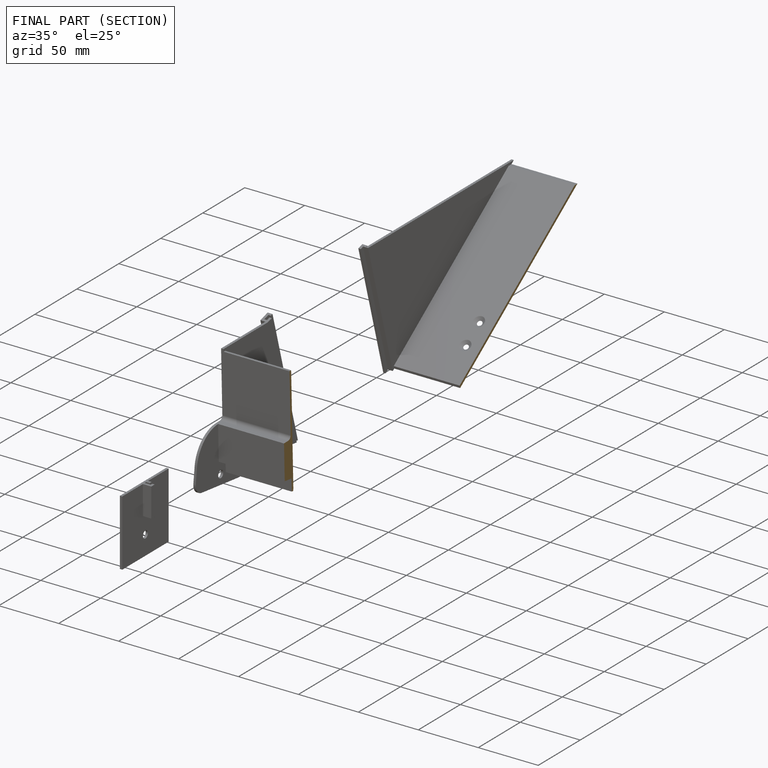
[diagram: finished part — half-section view (interior)]
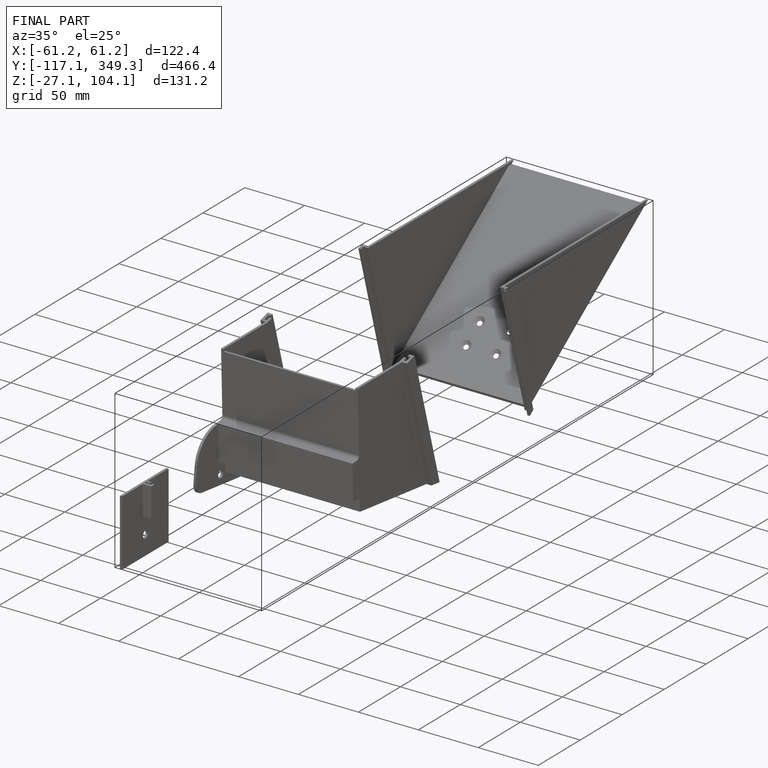
[diagram: finished part — iso view with bounding-box wireframe]
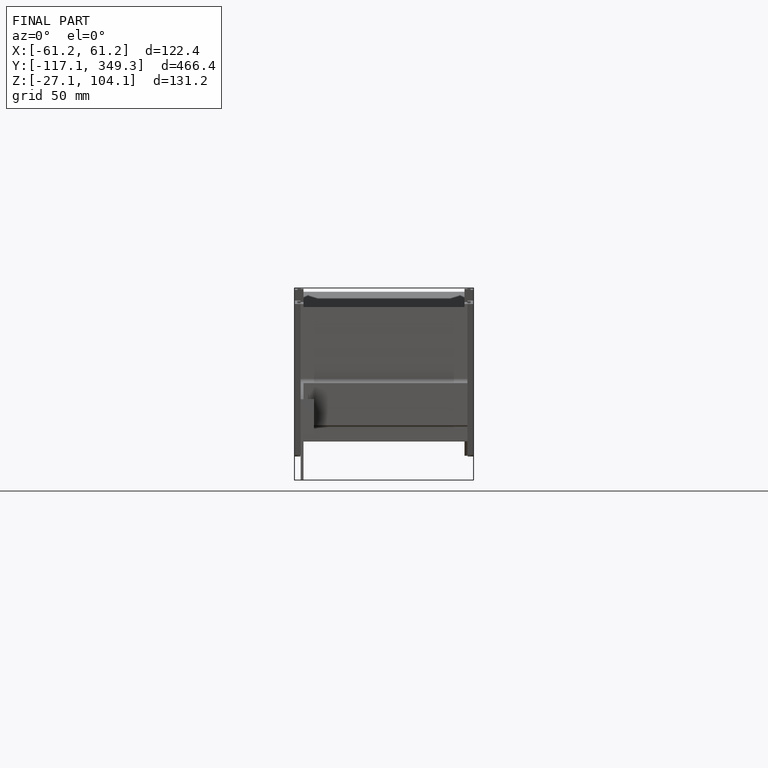
[diagram: finished part — front view with bounding-box wireframe]
